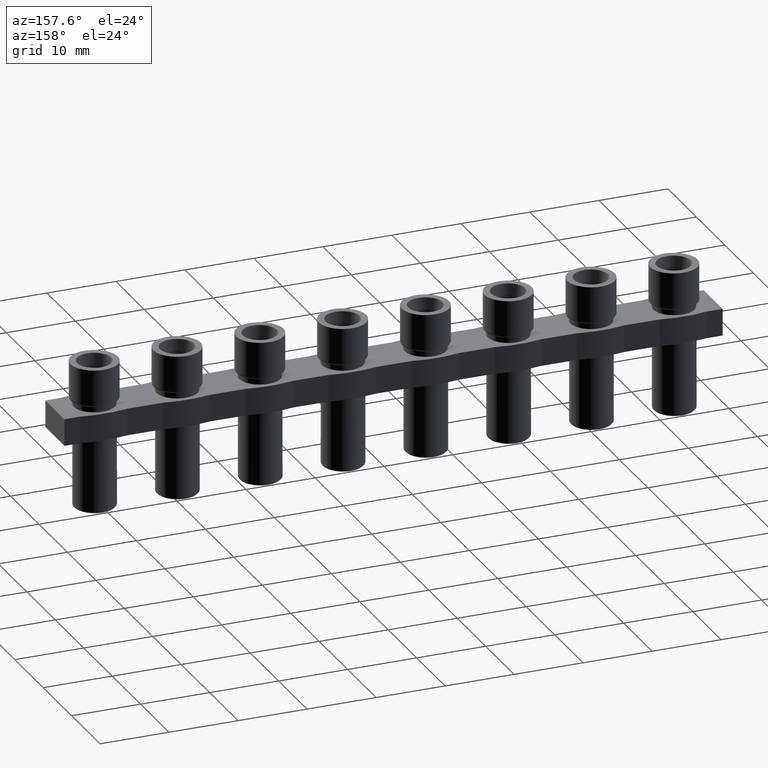
[diagram: clean part render]
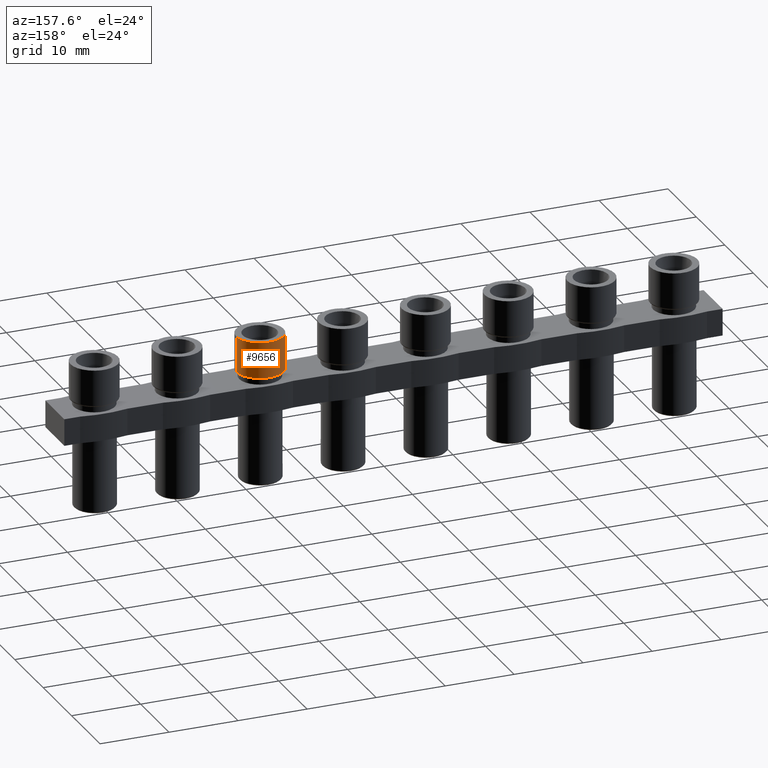
[diagram: same view with one face highlighted and labeled with its STEP entity id]
A machine part, auxiliary view. The second image highlights one B-rep face of the part: STEP entity #9656.
In plain terms, the highlighted cylindrical surface (edge-blend (fillet) strip) has radius 3.425 mm, axis along (-0, -0, -1).
Its self-contained STEP definition (entity closure, byte-faithful):
#432 = AXIS2_PLACEMENT_3D ( 'NONE', #11783, #11742, #11784 ) ;
#872 = CIRCLE ( 'NONE', #873, 3.424999999999997600 ) ;
#873 = AXIS2_PLACEMENT_3D ( 'NONE', #9101, #9102, #9104 ) ;
#890 = AXIS2_PLACEMENT_3D ( 'NONE', #4014, #4044, #4045 ) ;
#914 = CIRCLE ( 'NONE', #890, 3.424999999999997600 ) ;
#933 = VECTOR ( 'NONE', #4063, 1000.000000000000000 ) ;
#2129 = EDGE_CURVE ( 'NONE', #2739, #2702, #872, .T. ) ;
#2220 = EDGE_CURVE ( 'NONE', #2606, #2588, #914, .T. ) ;
#2246 = EDGE_CURVE ( 'NONE', #2702, #2588, #4062, .T. ) ;
#2588 = VERTEX_POINT ( 'NONE', #4469 ) ;
#2606 = VERTEX_POINT ( 'NONE', #4559 ) ;
#2702 = VERTEX_POINT ( 'NONE', #4586 ) ;
#2739 = VERTEX_POINT ( 'NONE', #4652 ) ;
#3761 = EDGE_LOOP ( 'NONE', ( #5256, #5250, #5280, #5247 ) ) ;
#4014 = CARTESIAN_POINT ( 'NONE',  ( -12.00000000000000000, -2.289291466493766400E-015, 0.1999999999999996500 ) ) ;
#4044 = DIRECTION ( 'NONE',  ( -0.0000000000000000000, -0.0000000000000000000, -1.000000000000000000 ) ) ;
#4045 = DIRECTION ( 'NONE',  ( 1.000000000000000000, 0.0000000000000000000, 0.0000000000000000000 ) ) ;
#4048 = CARTESIAN_POINT ( 'NONE',  ( -8.575000000000002800, -1.869849937785798600E-015, 5.400000000000000400 ) ) ;
#4062 = LINE ( 'NONE', #4048, #933 ) ;
#4063 = DIRECTION ( 'NONE',  ( -0.0000000000000000000, -0.0000000000000000000, -1.000000000000000000 ) ) ;
#4469 = CARTESIAN_POINT ( 'NONE',  ( -8.575000000000002800, -1.869849937785798600E-015, 0.1999999999999996500 ) ) ;
#4559 = CARTESIAN_POINT ( 'NONE',  ( -15.42499999999999700, -2.289291466493766400E-015, 0.1999999999999996500 ) ) ;
#4586 = CARTESIAN_POINT ( 'NONE',  ( -8.575000000000002800, -1.869849937785798600E-015, 5.400000000000000400 ) ) ;
#4652 = CARTESIAN_POINT ( 'NONE',  ( -15.42499999999999700, -2.289291466493766400E-015, 5.400000000000000400 ) ) ;
#5247 = ORIENTED_EDGE ( 'NONE', *, *, #9958, .F. ) ;
#5250 = ORIENTED_EDGE ( 'NONE', *, *, #2246, .T. ) ;
#5256 = ORIENTED_EDGE ( 'NONE', *, *, #2129, .T. ) ;
#5280 = ORIENTED_EDGE ( 'NONE', *, *, #2220, .F. ) ;
#7712 = DIRECTION ( 'NONE',  ( -0.0000000000000000000, -0.0000000000000000000, -1.000000000000000000 ) ) ;
#7715 = CARTESIAN_POINT ( 'NONE',  ( -15.42499999999999700, -2.289291466493766400E-015, 5.400000000000000400 ) ) ;
#7723 = LINE ( 'NONE', #7715, #11016 ) ;
#9101 = CARTESIAN_POINT ( 'NONE',  ( -12.00000000000000000, -2.289291466493766400E-015, 5.400000000000000400 ) ) ;
#9102 = DIRECTION ( 'NONE',  ( -0.0000000000000000000, -0.0000000000000000000, -1.000000000000000000 ) ) ;
#9104 = DIRECTION ( 'NONE',  ( -1.000000000000000000, 0.0000000000000000000, 0.0000000000000000000 ) ) ;
#9656 = ADVANCED_FACE ( 'NONE', ( #11756 ), #11745, .T. ) ;
#9958 = EDGE_CURVE ( 'NONE', #2739, #2606, #7723, .T. ) ;
#11016 = VECTOR ( 'NONE', #7712, 1000.000000000000000 ) ;
#11742 = DIRECTION ( 'NONE',  ( -0.0000000000000000000, -0.0000000000000000000, -1.000000000000000000 ) ) ;
#11745 = CYLINDRICAL_SURFACE ( 'NONE', #432, 3.424999999999997600 ) ;
#11756 = FACE_OUTER_BOUND ( 'NONE', #3761, .T. ) ;
#11783 = CARTESIAN_POINT ( 'NONE',  ( -12.00000000000000000, -2.289291466493766400E-015, 5.400000000000000400 ) ) ;
#11784 = DIRECTION ( 'NONE',  ( -1.000000000000000000, 0.0000000000000000000, 0.0000000000000000000 ) ) ;